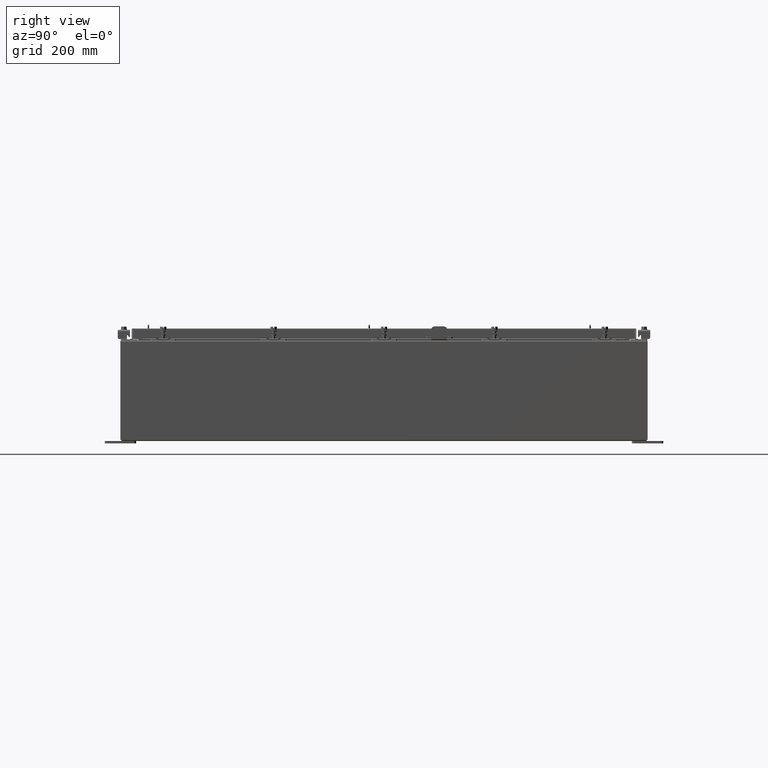
[diagram: clean part render]
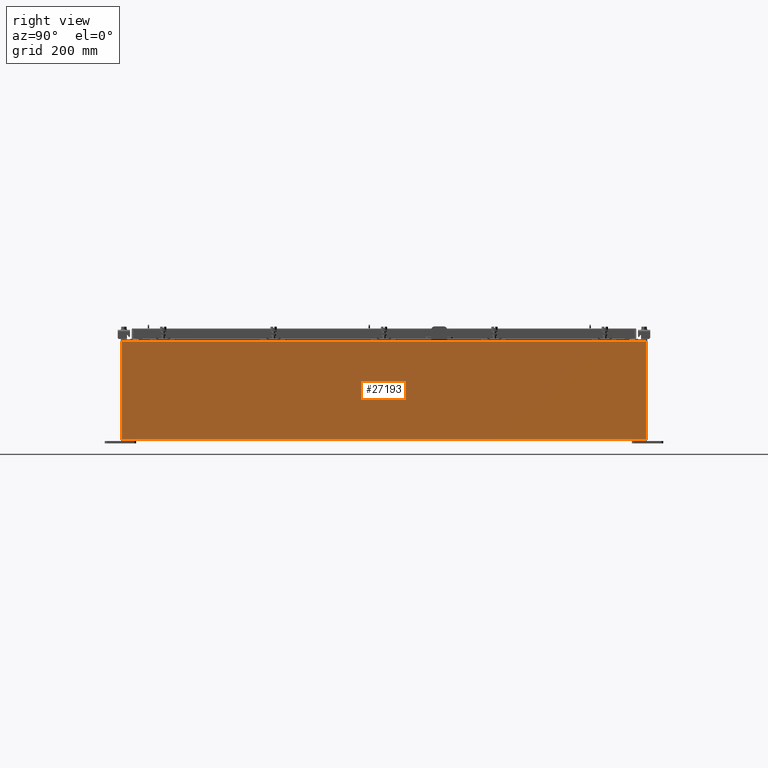
[diagram: same view with one face highlighted and labeled with its STEP entity id]
A machine part, right view. The second image highlights one B-rep face of the part: STEP entity #27193.
In plain terms, the highlighted planar face has unit normal (-1, 0, 0).
Its self-contained STEP definition (entity closure, byte-faithful):
#922 = CARTESIAN_POINT ( 'NONE',  ( 18.00000000000000400, 20.92529999999998900, -6.478858477053724100E-014 ) ) ;
#1996 = VECTOR ( 'NONE', #11794, 39.37007874015748100 ) ;
#2567 = CARTESIAN_POINT ( 'NONE',  ( 18.00000000000000400, 20.92529999999998600, 0.01299999999999984700 ) ) ;
#2572 = PLANE ( 'NONE',  #10995 ) ;
#2677 = FACE_OUTER_BOUND ( 'NONE', #23626, .T. ) ;
#4636 = DIRECTION ( 'NONE',  ( 3.584876173029202900E-015, 0.0000000000000000000, 1.000000000000000000 ) ) ;
#5661 = CARTESIAN_POINT ( 'NONE',  ( 18.00000000000000400, -20.92529999999999600, 0.01299999999999983600 ) ) ;
#5756 = VERTEX_POINT ( 'NONE', #10414 ) ;
#8586 = VECTOR ( 'NONE', #26135, 39.37007874015748100 ) ;
#9033 = VERTEX_POINT ( 'NONE', #23165 ) ;
#10414 = CARTESIAN_POINT ( 'NONE',  ( 18.00000000000003200, -20.92529999999999600, 7.837599999999999200 ) ) ;
#10836 = EDGE_CURVE ( 'NONE', #9033, #5756, #16856, .T. ) ;
#10838 = EDGE_CURVE ( 'NONE', #19478, #9033, #25432, .T. ) ;
#10995 = AXIS2_PLACEMENT_3D ( 'NONE', #15194, #17302, #4636 ) ;
#11056 = ORIENTED_EDGE ( 'NONE', *, *, #11911, .F. ) ;
#11365 = CARTESIAN_POINT ( 'NONE',  ( 18.00000000000002800, 20.92529999999997900, 7.837599999999999200 ) ) ;
#11794 = DIRECTION ( 'NONE',  ( -0.0000000000000000000, -1.000000000000000000, -0.0000000000000000000 ) ) ;
#11911 = EDGE_CURVE ( 'NONE', #19478, #18381, #18822, .T. ) ;
#13416 = DIRECTION ( 'NONE',  ( -0.0000000000000000000, -1.000000000000000000, -0.0000000000000000000 ) ) ;
#14289 = LINE ( 'NONE', #18988, #24838 ) ;
#15194 = CARTESIAN_POINT ( 'NONE',  ( 18.00000000000000400, 0.0000000000000000000, -6.478858477053724100E-014 ) ) ;
#16856 = LINE ( 'NONE', #11365, #19829 ) ;
#17302 = DIRECTION ( 'NONE',  ( -1.000000000000000000, 0.0000000000000000000, 3.584876173029202900E-015 ) ) ;
#18381 = VERTEX_POINT ( 'NONE', #5661 ) ;
#18822 = LINE ( 'NONE', #24443, #1996 ) ;
#18988 = CARTESIAN_POINT ( 'NONE',  ( 18.00000000000000400, -20.92529999999999600, -6.478858477053724100E-014 ) ) ;
#19478 = VERTEX_POINT ( 'NONE', #2567 ) ;
#19829 = VECTOR ( 'NONE', #13416, 39.37007874015748100 ) ;
#23165 = CARTESIAN_POINT ( 'NONE',  ( 18.00000000000002800, 20.92529999999997500, 7.837599999999999200 ) ) ;
#23626 = EDGE_LOOP ( 'NONE', ( #25576, #26955, #11056, #24619 ) ) ;
#24443 = CARTESIAN_POINT ( 'NONE',  ( 18.00000000000000400, -20.92529999999999600, 0.01299999999999984700 ) ) ;
#24619 = ORIENTED_EDGE ( 'NONE', *, *, #10838, .T. ) ;
#24838 = VECTOR ( 'NONE', #25227, 39.37007874015748100 ) ;
#25088 = EDGE_CURVE ( 'NONE', #5756, #18381, #14289, .T. ) ;
#25227 = DIRECTION ( 'NONE',  ( -3.584876173029202900E-015, 0.0000000000000000000, -1.000000000000000000 ) ) ;
#25432 = LINE ( 'NONE', #922, #8586 ) ;
#25576 = ORIENTED_EDGE ( 'NONE', *, *, #10836, .T. ) ;
#26135 = DIRECTION ( 'NONE',  ( 3.584876173029202900E-015, 0.0000000000000000000, 1.000000000000000000 ) ) ;
#26955 = ORIENTED_EDGE ( 'NONE', *, *, #25088, .T. ) ;
#27193 = ADVANCED_FACE ( 'NONE', ( #2677 ), #2572, .F. ) ;